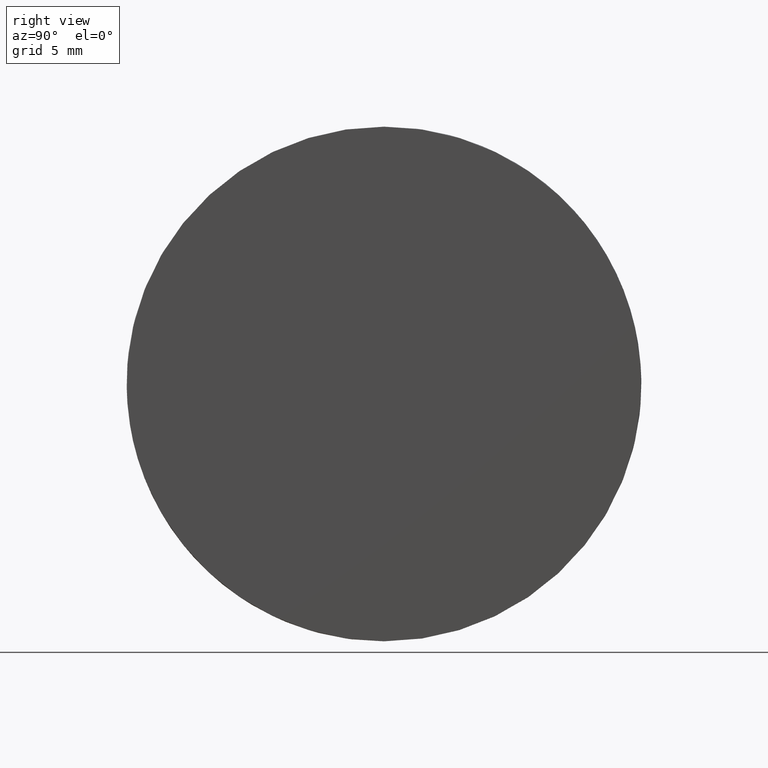
[diagram: clean part render]
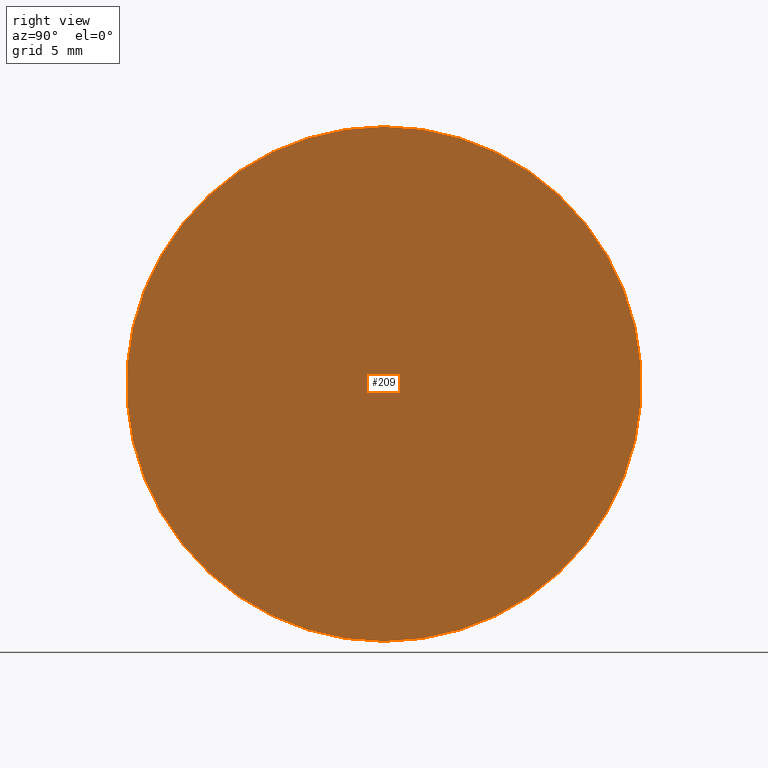
[diagram: same view with one face highlighted and labeled with its STEP entity id]
A machine part, right view. The second image highlights one B-rep face of the part: STEP entity #209.
In plain terms, the highlighted planar face has unit normal (1, 0, -0).
Its self-contained STEP definition (entity closure, byte-faithful):
#14 = CARTESIAN_POINT ( 'NONE',  ( -43.79479566514873300, 12.50000000000000000, 1.215549762655053200E-014 ) ) ;
#21 = CARTESIAN_POINT ( 'NONE',  ( -43.79479566514873300, 12.50000000000000200, 12.50000000000001800 ) ) ;
#33 = EDGE_CURVE ( 'NONE', #65, #213, #186, .T. ) ;
#47 = CARTESIAN_POINT ( 'NONE',  ( -43.79479566514873300, 12.50000000000000000, -12.49999999999999300 ) ) ;
#48 = AXIS2_PLACEMENT_3D ( 'NONE', #116, #155, #183 ) ;
#54 = DIRECTION ( 'NONE',  ( 1.000000000000000000, -4.930380657631322700E-032, -2.510324564891253900E-016 ) ) ;
#56 = AXIS2_PLACEMENT_3D ( 'NONE', #14, #185, #171 ) ;
#65 = VERTEX_POINT ( 'NONE', #21 ) ;
#103 = ORIENTED_EDGE ( 'NONE', *, *, #206, .T. ) ;
#116 = CARTESIAN_POINT ( 'NONE',  ( -43.79479566514873300, 25.00000000000000000, -12.49999999999999300 ) ) ;
#155 = DIRECTION ( 'NONE',  ( 1.000000000000000000, 0.0000000000000000000, -2.775557561562891800E-016 ) ) ;
#159 = DIRECTION ( 'NONE',  ( 0.0000000000000000000, 0.0000000000000000000, -1.000000000000000000 ) ) ;
#162 = ORIENTED_EDGE ( 'NONE', *, *, #33, .T. ) ;
#171 = DIRECTION ( 'NONE',  ( 0.0000000000000000000, 0.0000000000000000000, -1.000000000000000000 ) ) ;
#172 = AXIS2_PLACEMENT_3D ( 'NONE', #173, #54, #159 ) ;
#173 = CARTESIAN_POINT ( 'NONE',  ( -43.79479566514873300, 12.50000000000000000, 1.215549762655053200E-014 ) ) ;
#175 = EDGE_LOOP ( 'NONE', ( #103, #162 ) ) ;
#178 = CIRCLE ( 'NONE', #56, 12.50000000000000500 ) ;
#183 = DIRECTION ( 'NONE',  ( -2.775557561562891800E-016, 0.0000000000000000000, -1.000000000000000000 ) ) ;
#185 = DIRECTION ( 'NONE',  ( 1.000000000000000000, -4.930380657631322700E-032, -2.510324564891253900E-016 ) ) ;
#186 = CIRCLE ( 'NONE', #172, 12.50000000000000500 ) ;
#206 = EDGE_CURVE ( 'NONE', #213, #65, #178, .T. ) ;
#209 = ADVANCED_FACE ( 'NONE', ( #224 ), #225, .T. ) ;
#213 = VERTEX_POINT ( 'NONE', #47 ) ;
#224 = FACE_OUTER_BOUND ( 'NONE', #175, .T. ) ;
#225 = PLANE ( 'NONE',  #48 ) ;